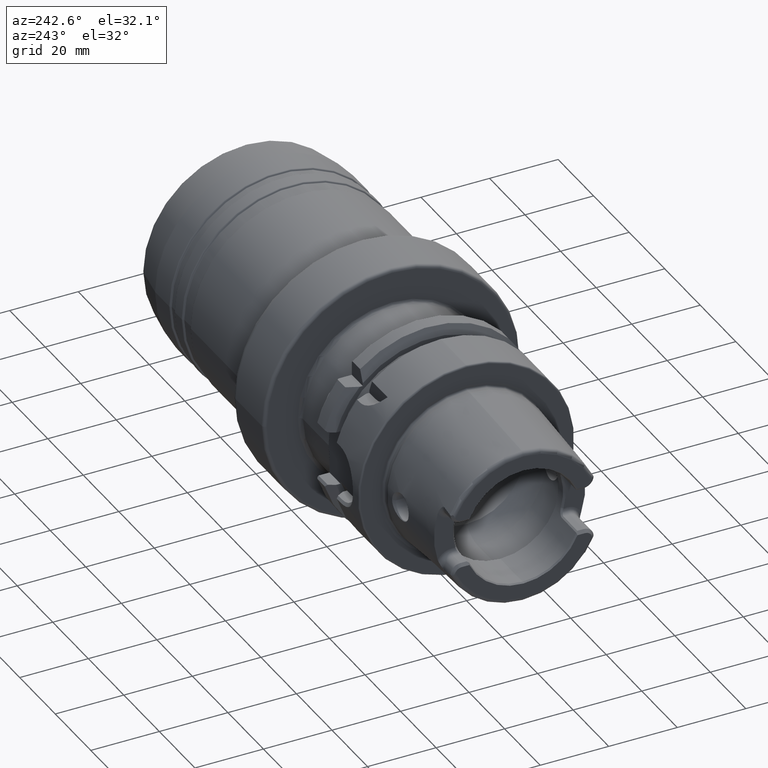
[diagram: clean part render]
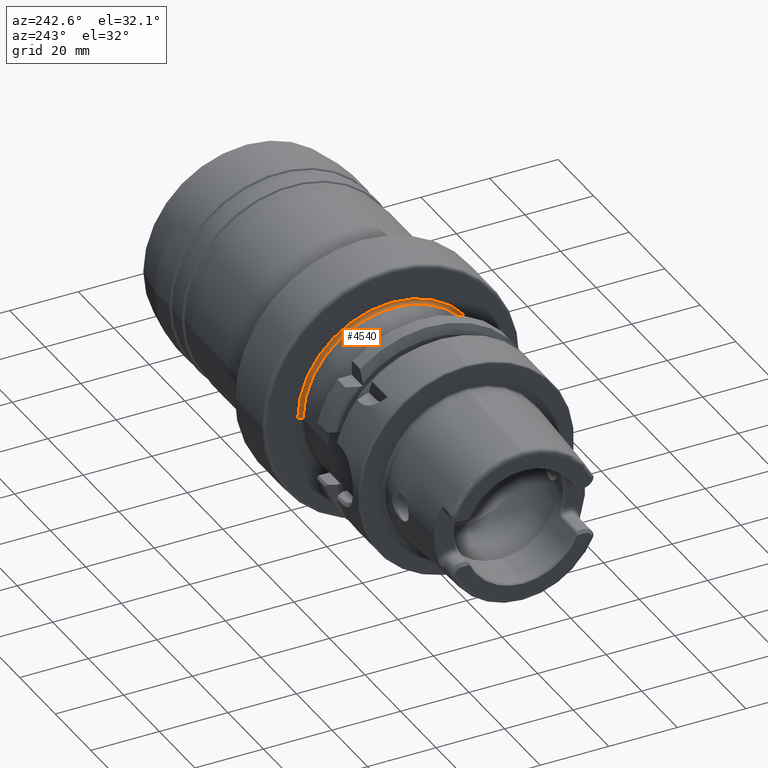
[diagram: same view with one face highlighted and labeled with its STEP entity id]
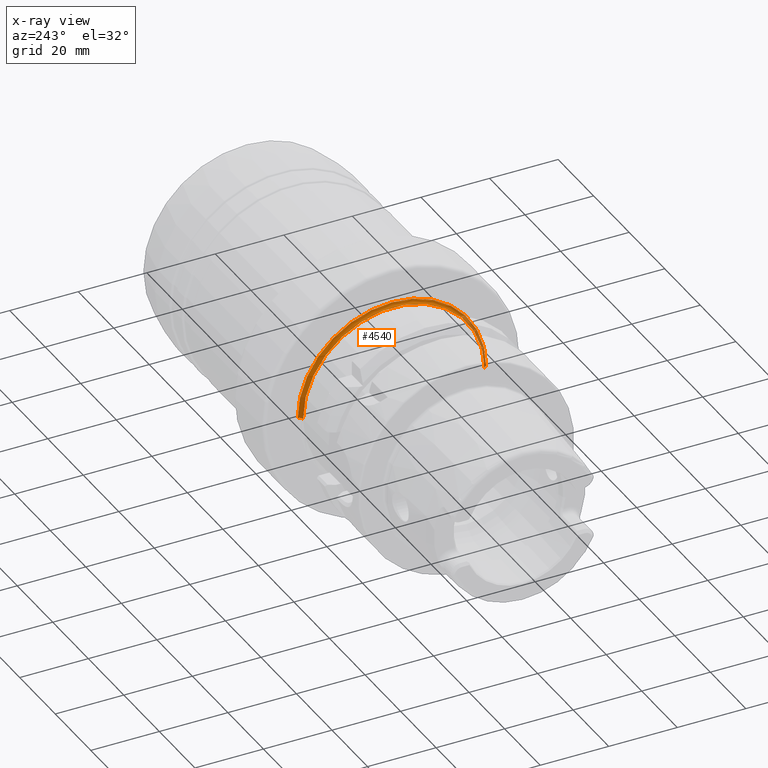
[diagram: x-ray of the same camera — body ghosted, the highlighted face saturated]
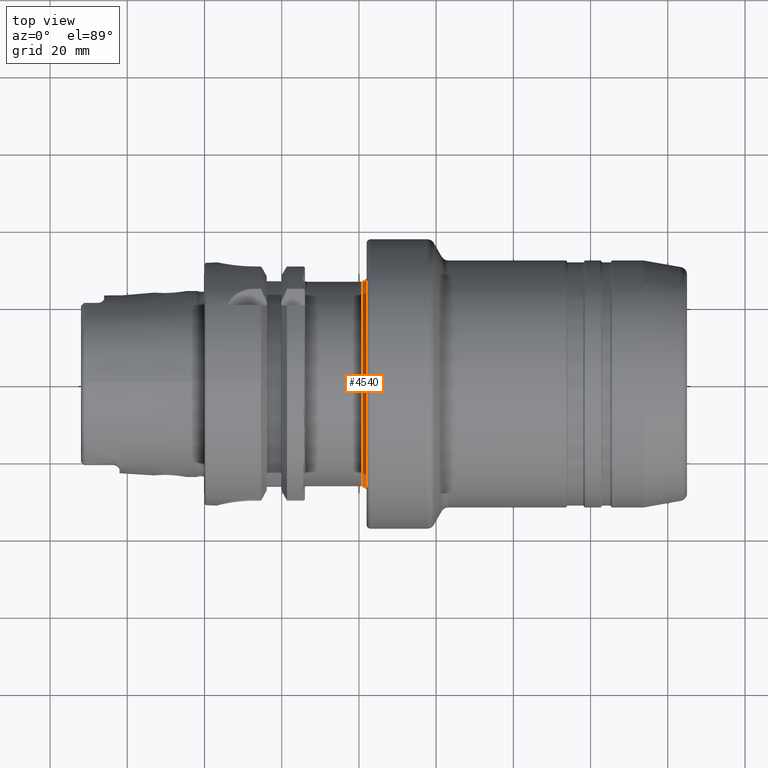
[diagram: same view with one face highlighted and labeled with its STEP entity id]
A machine part, auxiliary view. The second image highlights one B-rep face of the part: STEP entity #4540.
The next image is the same camera in x-ray: the body ghosted, the highlighted face saturated — about 12% of this face is hidden behind the body in this view.
A second angle (top view) of the same face is appended — the face is thin or edge-on in the first view.
In plain terms, the highlighted toroidal blend (fillet) surface has major radius 27.4828 mm and minor (blend) radius 0.9906 mm.
Its self-contained STEP definition (entity closure, byte-faithful):
#764=CARTESIAN_POINT('',(1.653622047244E0,0.E0,0.E0));
#765=DIRECTION('',(-1.E0,0.E0,0.E0));
#766=DIRECTION('',(0.E0,-1.E0,0.E0));
#767=AXIS2_PLACEMENT_3D('',#764,#765,#766);
#779=CARTESIAN_POINT('',(1.614622047244E0,1.082E0,3.690797667488E-14));
#780=DIRECTION('',(0.E0,3.411333715508E-14,-1.E0));
#781=DIRECTION('',(1.E0,-4.702790863284E-12,0.E0));
#782=AXIS2_PLACEMENT_3D('',#779,#780,#781);
#784=CARTESIAN_POINT('',(1.614622047244E0,-1.082E0,-3.752553823233E-14));
#785=DIRECTION('',(0.E0,-3.467885700825E-14,1.E0));
#786=DIRECTION('',(1.E0,4.702790863284E-12,0.E0));
#787=AXIS2_PLACEMENT_3D('',#784,#785,#786);
#789=CARTESIAN_POINT('',(1.614622047244E0,0.E0,0.E0));
#790=DIRECTION('',(-1.E0,0.E0,0.E0));
#791=DIRECTION('',(0.E0,-1.E0,0.E0));
#792=AXIS2_PLACEMENT_3D('',#789,#790,#791);
#3498=CARTESIAN_POINT('',(1.653622047244E0,1.082E0,0.E0));
#3499=CARTESIAN_POINT('',(1.653622047244E0,-1.082E0,0.E0));
#3500=VERTEX_POINT('',#3498);
#3501=VERTEX_POINT('',#3499);
#3502=CARTESIAN_POINT('',(1.614622047244E0,1.043E0,0.E0));
#3503=CARTESIAN_POINT('',(1.614622047244E0,-1.043E0,0.E0));
#3504=VERTEX_POINT('',#3502);
#3505=VERTEX_POINT('',#3503);
#4528=CARTESIAN_POINT('',(1.614622047244E0,0.E0,0.E0));
#4529=DIRECTION('',(1.E0,0.E0,0.E0));
#4530=DIRECTION('',(0.E0,-9.998780093890E-1,-1.561942189217E-2));
#4531=AXIS2_PLACEMENT_3D('',#4528,#4529,#4530);
#4532=TOROIDAL_SURFACE('',#4531,1.082E0,3.9E-2);
#4533=ORIENTED_EDGE('',*,*,#4508,.F.);
#4534=ORIENTED_EDGE('',*,*,#4523,.T.);
#4536=ORIENTED_EDGE('',*,*,#4535,.T.);
#4537=ORIENTED_EDGE('',*,*,#4519,.F.);
#4538=EDGE_LOOP('',(#4533,#4534,#4536,#4537));
#4539=FACE_OUTER_BOUND('',#4538,.F.);
#4540=ADVANCED_FACE('',(#4539),#4532,.F.);
#768=CIRCLE('',#767,1.082E0);
#783=CIRCLE('',#782,3.9E-2);
#788=CIRCLE('',#787,3.9E-2);
#793=CIRCLE('',#792,1.043E0);
#4508=EDGE_CURVE('',#3501,#3500,#768,.T.);
#4519=EDGE_CURVE('',#3500,#3504,#783,.T.);
#4523=EDGE_CURVE('',#3501,#3505,#788,.T.);
#4535=EDGE_CURVE('',#3505,#3504,#793,.T.);